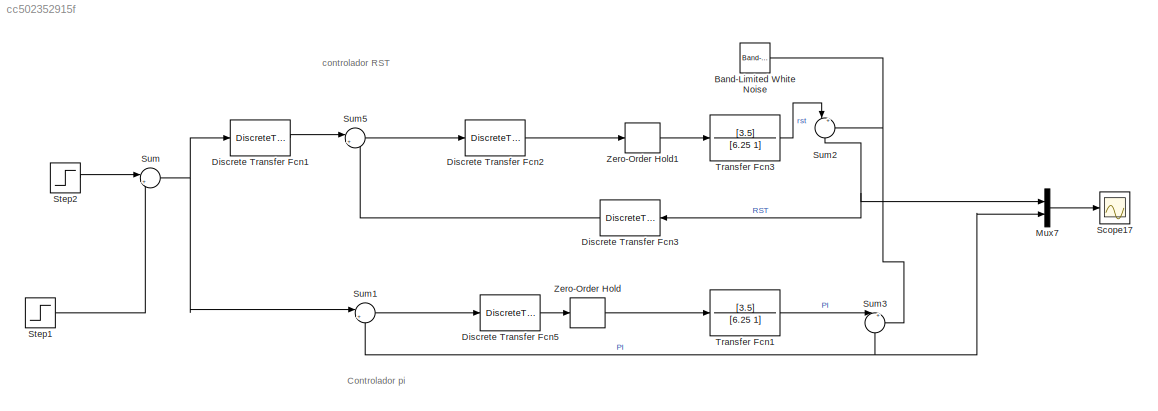
MODEL slx_cc502352915f
KIND model
CONFIG AbsTol = auto
CONFIG EnableMultiTasking = off
CONFIG FixedStep = auto
CONFIG MaxStep = auto
CONFIG MinStep = auto
CONFIG RelTol = 1e-3
CONFIG SampleTimeConstraint = Unconstrained
CONFIG Solver = VariableStepAuto
CONFIG SolverName = VariableStepAuto
CONFIG StartTime = 0.0
CONFIG StopTime = 200
BLOCK [Reference] Band-Limited White Noise  REF=simulink/Sources/Band-Limited
White Noise
  Ports = [0, 1]
  SourceBlock = simulink/Sources/Band-Limited\nWhite Noise
  SourceProductBaseCode = SL
  SourceType = Band-Limited White Noise.
BLOCK [DiscreteTransferFcn] Discrete Transfer Fcn1
  Denominator = [1]
  InputPortMap = u0
  Numerator = [0.4046]
  Ports = [1, 1]
BLOCK [DiscreteTransferFcn] Discrete Transfer Fcn2
  Denominator = [1]
  InputPortMap = u0
  Ports = [1, 1]
BLOCK [DiscreteTransferFcn] Discrete Transfer Fcn3
  Denominator = [1]
  InputPortMap = u0
  Numerator = [0.1190]
  Ports = [1, 1]
BLOCK [DiscreteTransferFcn] Discrete Transfer Fcn5
  Denominator = [1 -1]
  InputPortMap = u0
  Numerator = [0.377 -0.349]
  Ports = [1, 1]
BLOCK [Mux] Mux7
  DisplayOption = bar
  Inputs = 2
  Ports = [2, 1]
BLOCK [Scope] Scope17
  Floating = off
  NumInputPorts = 1
  Ports = [1]
  ScopeSpecificationString = Simulink.scopes.TimeScopeBlockCfg('CurrentConfiguration', extmgr.ConfigurationSet(extmgr.Configuration('Core','General UI',true,'FigureColor',[0 1 1]),extmgr.Configuration('Core','Source UI',true),extmgr.Configuration('Sources','WiredSimulink',true,'DataLoggingVariableName','ScopeData3'),extmgr.Configuration('Visuals','Time Domain',true,'SerializedDisplays',{struct('MinYLimReal','-5.15305','MaxYLi...<+2032ch>
BLOCK [Step] Step1
  After = 20
  SampleTime = 0
BLOCK [Step] Step2
  After = 20
  SampleTime = 0
  Time = 40
BLOCK [Sum] Sum
  Inputs = |++
  Ports = [2, 1]
BLOCK [Sum] Sum1
  Inputs = |+-
  Ports = [2, 1]
BLOCK [Sum] Sum2
  Inputs = |++
  NameLocation = right
  Ports = [2, 1]
BLOCK [Sum] Sum3
  Inputs = |++
  NameLocation = right
  Ports = [2, 1]
BLOCK [Sum] Sum5
  Inputs = |+-
  Ports = [2, 1]
BLOCK [TransferFcn] Transfer Fcn1
  Denominator = [6.25 1]
  Numerator = [3.5]
BLOCK [TransferFcn] Transfer Fcn3
  Denominator = [6.25 1]
  Numerator = [3.5]
BLOCK [ZeroOrderHold] Zero-Order Hold
  SampleTime = -1
BLOCK [ZeroOrderHold] Zero-Order Hold1
  SampleTime = -1
ANNOTATION (root): Controlador pi
ANNOTATION (root): controlador RST
NET Band-Limited White Noise:1 -> Sum2:2, Sum3:2
LINE Discrete Transfer Fcn1:1 -> Sum5:1
LINE Discrete Transfer Fcn2:1 -> Zero-Order Hold1:1
LINE Discrete Transfer Fcn3:1 -> Sum5:2
LINE Discrete Transfer Fcn5:1 -> Zero-Order Hold:1
LINE Mux7:1 -> Scope17:1
LINE Step1:1 -> Sum:2
LINE Step2:1 -> Sum:1
LINE Sum1:1 -> Discrete Transfer Fcn5:1
NET Sum2:1 -> Discrete Transfer Fcn3:1, Mux7:1
NET Sum3:1 -> Mux7:2, Sum1:2
LINE Sum5:1 -> Discrete Transfer Fcn2:1
NET Sum:1 -> Discrete Transfer Fcn1:1, Sum1:1
LINE Transfer Fcn1:1 -> Sum3:1
LINE Transfer Fcn3:1 -> Sum2:1
LINE Zero-Order Hold1:1 -> Transfer Fcn3:1
LINE Zero-Order Hold:1 -> Transfer Fcn1:1
note: NET lines group one-source signal fan-out (src -> all destinations, sorted); 1:1 wires keep LINE
